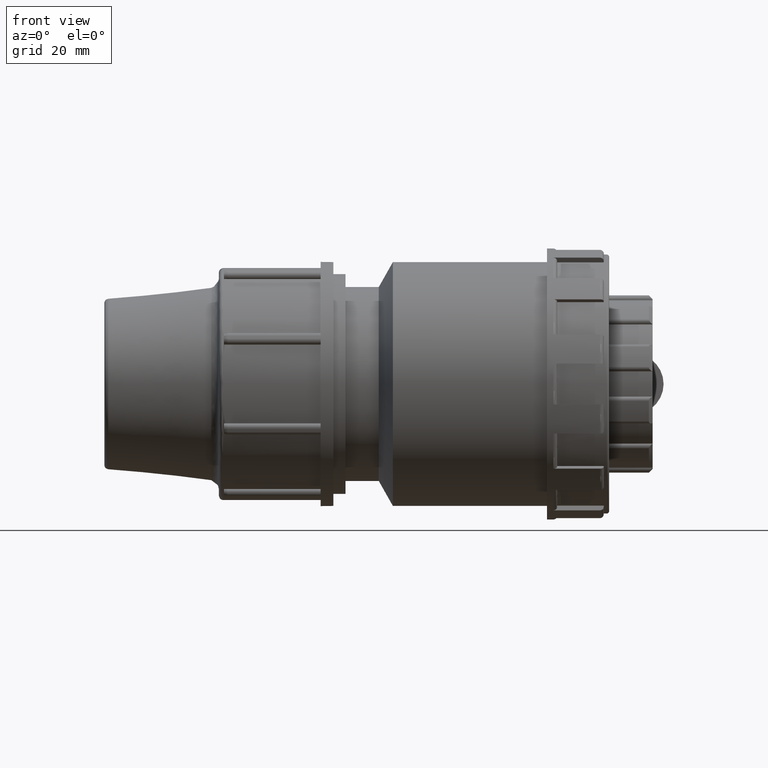
[diagram: clean part render]
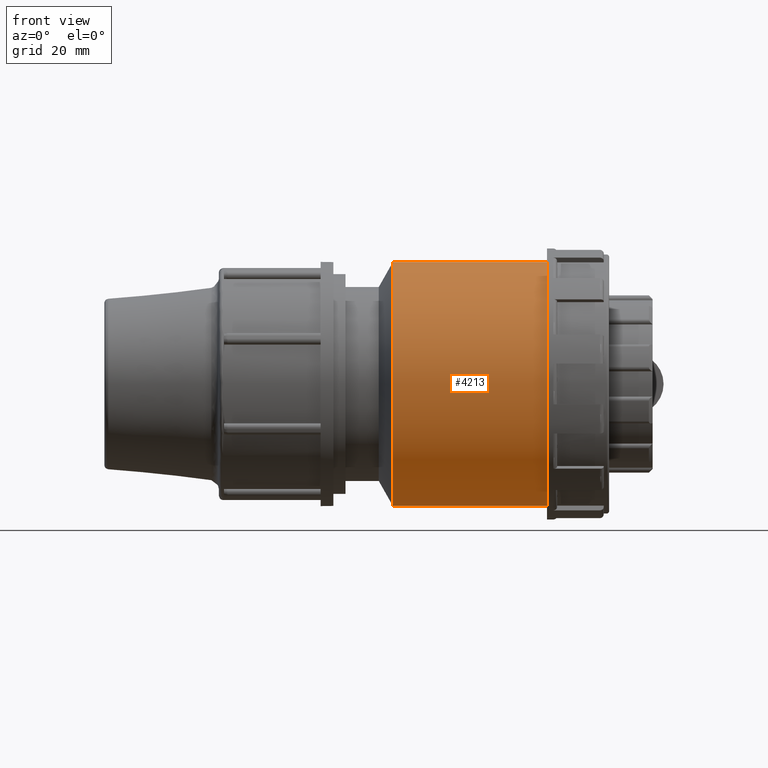
[diagram: same view with one face highlighted and labeled with its STEP entity id]
A machine part, front view. The second image highlights one B-rep face of the part: STEP entity #4213.
In plain terms, the highlighted cylindrical surface (bore or boss wall) has radius 43.2 mm, axis along (-1, 0, 0).
Its self-contained STEP definition (entity closure, byte-faithful):
#56=FACE_BOUND('',#864,.T.);
#57=FACE_BOUND('',#865,.T.);
#291=B_SPLINE_CURVE_WITH_KNOTS('',3,(#7704,#7705,#7706,#7707,#7708,#7709,
#7710,#7711,#7712,#7713,#7714,#7715,#7716,#7717,#7718,#7719,#7720,#7721,
#7722,#7723,#7724,#7725,#7726,#7727,#7728,#7729,#7730,#7731,#7732,#7733,
#7734,#7735,#7736,#7737,#7738,#7739,#7740,#7741,#7742,#7743,#7744,#7745,
#7746,#7747,#7748,#7749,#7750,#7751,#7752,#7753),.UNSPECIFIED.,.T.,.F.,
(4,2,2,2,2,2,2,2,2,2,2,2,2,2,2,2,2,2,2,2,2,2,2,2,4),(0.,0.273555490481054,
0.547110980962108,1.09422196192422,1.64107919239118,1.91450780762465,2.18793642285813,
2.46136503809161,2.73479365332509,3.28165088379205,3.82876186475416,4.10231735523521,
4.37587284571627,4.64942833619732,4.92298382667838,5.47009480764048,6.01695203810744,
6.29038065334092,6.5638092685744,6.83723788380788,7.11066649904136,7.65752372950832,
8.20463471047043,8.47819020095148,8.75174569143254),.UNSPECIFIED.);
#593=FACE_OUTER_BOUND('',#863,.T.);
#863=EDGE_LOOP('',(#3879));
#864=EDGE_LOOP('',(#3880));
#865=EDGE_LOOP('',(#3881));
#1598=CIRCLE('',#4703,43.2);
#1599=CIRCLE('',#4705,43.2);
#1859=VERTEX_POINT('',#7703);
#2011=VERTEX_POINT('',#8641);
#2012=VERTEX_POINT('',#8644);
#2414=EDGE_CURVE('',#1859,#1859,#291,.T.);
#2638=EDGE_CURVE('',#2011,#2011,#1598,.T.);
#2639=EDGE_CURVE('',#2012,#2012,#1599,.T.);
#3879=ORIENTED_EDGE('',*,*,#2639,.F.);
#3880=ORIENTED_EDGE('',*,*,#2414,.T.);
#3881=ORIENTED_EDGE('',*,*,#2638,.T.);
#3971=CYLINDRICAL_SURFACE('',#4704,43.2);
#4213=ADVANCED_FACE('',(#593,#56,#57),#3971,.T.);
#4703=AXIS2_PLACEMENT_3D('',#8642,#5908,#5909);
#4704=AXIS2_PLACEMENT_3D('',#8643,#5910,#5911);
#4705=AXIS2_PLACEMENT_3D('',#8645,#5912,#5913);
#5908=DIRECTION('center_axis',(-1.,0.,0.));
#5909=DIRECTION('ref_axis',(0.,0.,1.));
#5910=DIRECTION('center_axis',(-1.,0.,0.));
#5911=DIRECTION('ref_axis',(0.,1.,0.));
#5912=DIRECTION('center_axis',(-1.,0.,0.));
#5913=DIRECTION('ref_axis',(0.,0.,1.));
#7703=CARTESIAN_POINT('',(0.,40.7293505963451,14.4));
#7704=CARTESIAN_POINT('Ctrl Pts',(0.,40.7293505963451,14.4));
#7705=CARTESIAN_POINT('Ctrl Pts',(-0.911851634936848,40.7293505963451,14.4));
#7706=CARTESIAN_POINT('Ctrl Pts',(-1.85237510172147,40.7608231408258,14.3119947309041));
#7707=CARTESIAN_POINT('Ctrl Pts',(-3.71854079876528,40.8881517698876,13.9440647259576));
#7708=CARTESIAN_POINT('Ctrl Pts',(-4.64421276125376,40.9838787409539,13.664246131558));
#7709=CARTESIAN_POINT('Ctrl Pts',(-7.30156579139086,41.3413979437776,12.5590018698195));
#7710=CARTESIAN_POINT('Ctrl Pts',(-8.91134038617683,41.674591527307,11.4533349119957));
#7711=CARTESIAN_POINT('Ctrl Pts',(-11.4527454224844,42.2909727862583,8.91192987568814));
#7712=CARTESIAN_POINT('Ctrl Pts',(-12.5588662000788,42.615892156369,7.30192049218663));
#7713=CARTESIAN_POINT('Ctrl Pts',(-13.6643642946926,42.9589587369855,4.64391440503192));
#7714=CARTESIAN_POINT('Ctrl Pts',(-13.9442021330183,43.0498614969582,3.71803209612966));
#7715=CARTESIAN_POINT('Ctrl Pts',(-14.3120706504113,43.1704200591327,1.85180168850108));
#7716=CARTESIAN_POINT('Ctrl Pts',(-14.4,43.2,0.911428717444933));
#7717=CARTESIAN_POINT('Ctrl Pts',(-14.4,43.2,-0.911428717444929));
#7718=CARTESIAN_POINT('Ctrl Pts',(-14.3120706504113,43.1704200591327,-1.85180168850107));
#7719=CARTESIAN_POINT('Ctrl Pts',(-13.9442021330183,43.0498614969582,-3.71803209612966));
#7720=CARTESIAN_POINT('Ctrl Pts',(-13.6643642946926,42.9589587369855,-4.64391440503191));
#7721=CARTESIAN_POINT('Ctrl Pts',(-12.5588662000788,42.615892156369,-7.30192049218663));
#7722=CARTESIAN_POINT('Ctrl Pts',(-11.4527454224844,42.2909727862583,-8.91192987568814));
#7723=CARTESIAN_POINT('Ctrl Pts',(-8.91134038617684,41.674591527307,-11.4533349119957));
#7724=CARTESIAN_POINT('Ctrl Pts',(-7.30156579139086,41.3413979437776,-12.5590018698195));
#7725=CARTESIAN_POINT('Ctrl Pts',(-4.64421276125376,40.9838787409539,-13.664246131558));
#7726=CARTESIAN_POINT('Ctrl Pts',(-3.71854079876528,40.8881517698876,-13.9440647259576));
#7727=CARTESIAN_POINT('Ctrl Pts',(-1.85237510172147,40.7608231408258,-14.3119947309041));
#7728=CARTESIAN_POINT('Ctrl Pts',(-0.911851634936847,40.7293505963452,-14.4));
#7729=CARTESIAN_POINT('Ctrl Pts',(0.911851634936847,40.7293505963452,-14.4));
#7730=CARTESIAN_POINT('Ctrl Pts',(1.85237510172147,40.7608231408258,-14.3119947309041));
#7731=CARTESIAN_POINT('Ctrl Pts',(3.71854079876528,40.8881517698876,-13.9440647259576));
#7732=CARTESIAN_POINT('Ctrl Pts',(4.64421276125376,40.9838787409539,-13.664246131558));
#7733=CARTESIAN_POINT('Ctrl Pts',(7.30156579139085,41.3413979437776,-12.5590018698195));
#7734=CARTESIAN_POINT('Ctrl Pts',(8.91134038617683,41.674591527307,-11.4533349119957));
#7735=CARTESIAN_POINT('Ctrl Pts',(11.4527454224844,42.2909727862583,-8.91192987568814));
#7736=CARTESIAN_POINT('Ctrl Pts',(12.5588662000788,42.615892156369,-7.30192049218663));
#7737=CARTESIAN_POINT('Ctrl Pts',(13.6643642946926,42.9589587369855,-4.64391440503192));
#7738=CARTESIAN_POINT('Ctrl Pts',(13.9442021330183,43.0498614969582,-3.71803209612967));
#7739=CARTESIAN_POINT('Ctrl Pts',(14.3120706504113,43.1704200591327,-1.85180168850108));
#7740=CARTESIAN_POINT('Ctrl Pts',(14.4,43.2,-0.911428717444935));
#7741=CARTESIAN_POINT('Ctrl Pts',(14.4,43.2,0.911428717444927));
#7742=CARTESIAN_POINT('Ctrl Pts',(14.3120706504113,43.1704200591327,1.85180168850107));
#7743=CARTESIAN_POINT('Ctrl Pts',(13.9442021330183,43.0498614969582,3.71803209612966));
#7744=CARTESIAN_POINT('Ctrl Pts',(13.6643642946926,42.9589587369855,4.64391440503191));
#7745=CARTESIAN_POINT('Ctrl Pts',(12.5588662000788,42.615892156369,7.30192049218663));
#7746=CARTESIAN_POINT('Ctrl Pts',(11.4527454224844,42.2909727862583,8.91192987568814));
#7747=CARTESIAN_POINT('Ctrl Pts',(8.91134038617684,41.674591527307,11.4533349119957));
#7748=CARTESIAN_POINT('Ctrl Pts',(7.30156579139086,41.3413979437776,12.5590018698195));
#7749=CARTESIAN_POINT('Ctrl Pts',(4.64421276125377,40.9838787409539,13.664246131558));
#7750=CARTESIAN_POINT('Ctrl Pts',(3.71854079876529,40.8881517698876,13.9440647259576));
#7751=CARTESIAN_POINT('Ctrl Pts',(1.85237510172147,40.7608231408258,14.3119947309041));
#7752=CARTESIAN_POINT('Ctrl Pts',(0.911851634936848,40.7293505963451,14.4));
#7753=CARTESIAN_POINT('Ctrl Pts',(-5.55111512312578E-16,40.7293505963451,
14.4));
#8641=CARTESIAN_POINT('',(27.2666666666667,43.2,0.));
#8642=CARTESIAN_POINT('Origin',(27.2666666666667,0.,0.));
#8643=CARTESIAN_POINT('Origin',(0.,0.,0.));
#8644=CARTESIAN_POINT('',(-27.2666666666667,43.2,0.));
#8645=CARTESIAN_POINT('Origin',(-27.2666666666667,0.,0.));